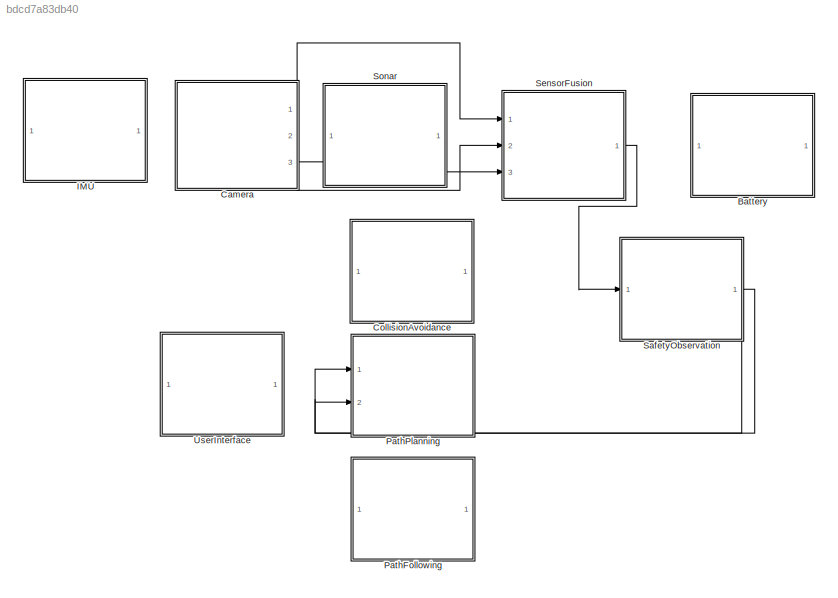
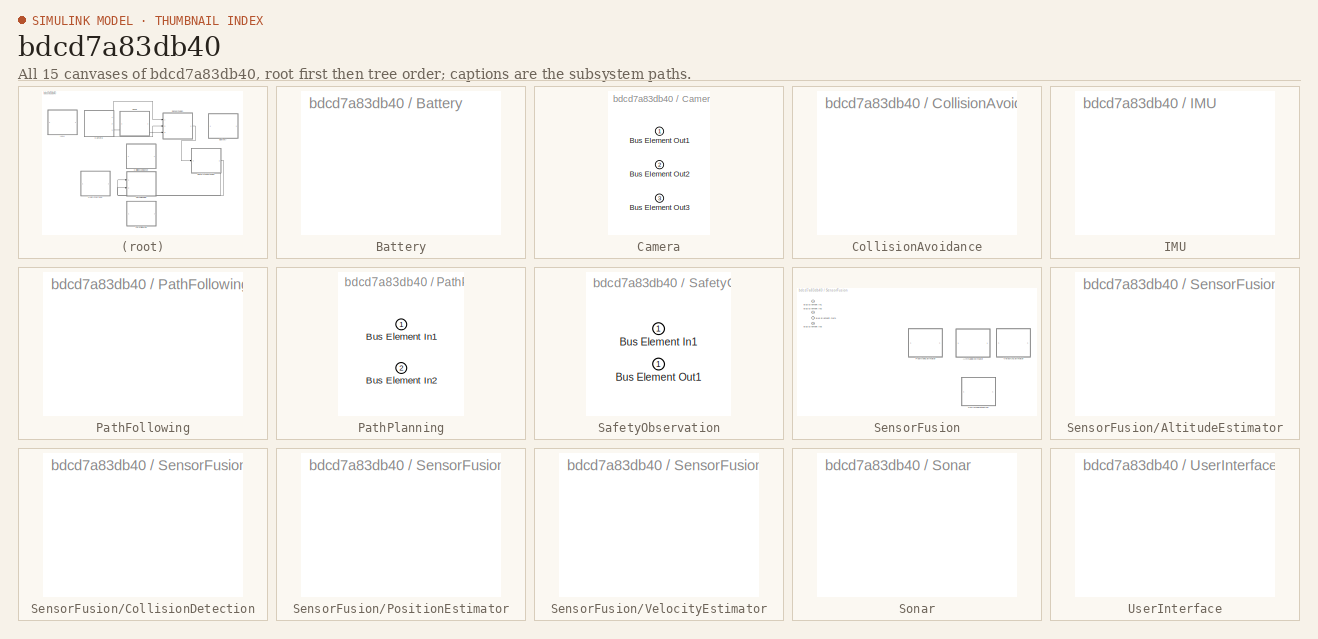
[diagram: thumbnail index - all 15 canvases of the model, root first then tree order]
MODEL slx_bdcd7a83db40
KIND model
CONFIG AbsTol = auto
CONFIG EnableMultiTasking = off
CONFIG FixedStep = auto
CONFIG MaxStep = auto
CONFIG MinStep = auto
CONFIG RelTol = 1e-3
CONFIG SampleTimeConstraint = Unconstrained
CONFIG SolverName = VariableStepAuto
CONFIG StartTime = 0.0
CONFIG StopTime = 10.0
BLOCK [SubSystem] Battery
  PortSchema = {"entries":[{"content":{"headerSize":26,"margin":15,"minimumSpacing":25,"sides":[{"content":{"connectorIds":[]},"type":"ConnectorPlacement.EquallySpacedRectSide","uuid":"982650e6-ddcc-430e-b118-190f1a8c1bc9"},{"content":{"connectorIds":[],"side":"RIGHT"},"type":"ConnectorPlacement.EquallySpacedRectSide","uuid":"ed844e2c-e9bb-41b6-92bb-7e682fbb84b4"},{"content":{"connectorIds":[],"side":"TOP"},"typ...<+277ch>  <repeated x10 — deduplicated; at blocks: Battery, CollisionAvoidance, IMU, PathFollowing, AltitudeEstimator, CollisionDetection, PositionEstimator, VelocityEstimator, Sonar, UserInterface>
  Ports = []
  RequestExecContextInheritance = off
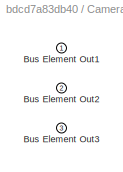
BLOCK [SubSystem] Camera
  PortSchema = {"entries":[{"content":{"headerSize":26,"margin":15,"minimumSpacing":25,"sides":[{"content":{"connectorIds":[]},"type":"ConnectorPlacement.EquallySpacedRectSide","uuid":"982650e6-ddcc-430e-b118-190f1a8c1bc9"},{"content":{"connectorIds":["Out1","Out2","Out3"],"side":"RIGHT"},"type":"ConnectorPlacement.EquallySpacedRectSide","uuid":"ed844e2c-e9bb-41b6-92bb-7e682fbb84b4"},{"content":{"connectorIds":[...<+297ch>
  Ports = [0, 3]
  RequestExecContextInheritance = off
BLOCK [Outport] Camera/Bus Element Out1
BLOCK [Outport] Camera/Bus Element Out2
  Port = 2
BLOCK [Outport] Camera/Bus Element Out3
  Port = 3
BLOCK [SubSystem] CollisionAvoidance
  Ports = []
  RequestExecContextInheritance = off
BLOCK [SubSystem] IMU
  Ports = []
  RequestExecContextInheritance = off
BLOCK [SubSystem] PathFollowing
  Ports = []
  RequestExecContextInheritance = off
BLOCK [SubSystem] PathPlanning
  PortSchema = {"entries":[{"content":{"headerSize":26,"margin":15,"minimumSpacing":25,"sides":[{"content":{"connectorIds":["In1","In2"]},"type":"ConnectorPlacement.EquallySpacedRectSide","uuid":"982650e6-ddcc-430e-b118-190f1a8c1bc9"},{"content":{"connectorIds":[],"side":"RIGHT"},"type":"ConnectorPlacement.EquallySpacedRectSide","uuid":"ed844e2c-e9bb-41b6-92bb-7e682fbb84b4"},{"content":{"connectorIds":[],"side":...<+288ch>
  Ports = [2]
  RequestExecContextInheritance = off
BLOCK [Inport] PathPlanning/Bus Element In1
BLOCK [Inport] PathPlanning/Bus Element In2
  Port = 2
BLOCK [SubSystem] SafetyObservation
  PortSchema = {"entries":[{"content":{"headerSize":26,"margin":15,"minimumSpacing":25,"sides":[{"content":{"connectorIds":["In1"]},"type":"ConnectorPlacement.EquallySpacedRectSide","uuid":"982650e6-ddcc-430e-b118-190f1a8c1bc9"},{"content":{"connectorIds":["Out1"],"side":"RIGHT"},"type":"ConnectorPlacement.EquallySpacedRectSide","uuid":"ed844e2c-e9bb-41b6-92bb-7e682fbb84b4"},{"content":{"connectorIds":[],"side":...<+288ch>
  Ports = [1, 1]
  RequestExecContextInheritance = off
BLOCK [Inport] SafetyObservation/Bus Element In1
BLOCK [Outport] SafetyObservation/Bus Element Out1
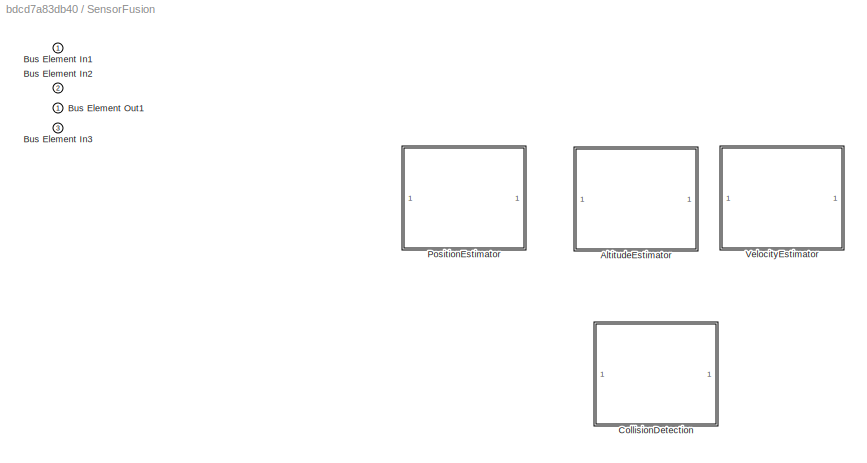
BLOCK [SubSystem] SensorFusion
  PortSchema = {"entries":[{"content":{"headerSize":26,"margin":15,"minimumSpacing":25,"sides":[{"content":{"connectorIds":["In1","In2","In3"]},"type":"ConnectorPlacement.EquallySpacedRectSide","uuid":"982650e6-ddcc-430e-b118-190f1a8c1bc9"},{"content":{"connectorIds":["Out1"],"side":"RIGHT"},"type":"ConnectorPlacement.EquallySpacedRectSide","uuid":"ed844e2c-e9bb-41b6-92bb-7e682fbb84b4"},{"content":{"connectorIds...<+300ch>
  Ports = [3, 1]
  RequestExecContextInheritance = off
BLOCK [SubSystem] SensorFusion/AltitudeEstimator
  Ports = []
  RequestExecContextInheritance = off
BLOCK [Inport] SensorFusion/Bus Element In1
BLOCK [Inport] SensorFusion/Bus Element In2
  Port = 2
BLOCK [Inport] SensorFusion/Bus Element In3
  Port = 3
BLOCK [Outport] SensorFusion/Bus Element Out1
BLOCK [SubSystem] SensorFusion/CollisionDetection
  Ports = []
  RequestExecContextInheritance = off
BLOCK [SubSystem] SensorFusion/PositionEstimator
  Ports = []
  RequestExecContextInheritance = off
BLOCK [SubSystem] SensorFusion/VelocityEstimator
  Ports = []
  RequestExecContextInheritance = off
BLOCK [SubSystem] Sonar
  Ports = []
  RequestExecContextInheritance = off
BLOCK [SubSystem] UserInterface
  Ports = []
  RequestExecContextInheritance = off
LINE Camera:1 -> SensorFusion:1
LINE Camera:2 -> SensorFusion:2
LINE Camera:3 -> SensorFusion:3
NET SafetyObservation:1 -> PathPlanning:1, PathPlanning:2
LINE SensorFusion:1 -> SafetyObservation:1
note: NET lines group one-source signal fan-out (src -> all destinations, sorted); 1:1 wires keep LINE
